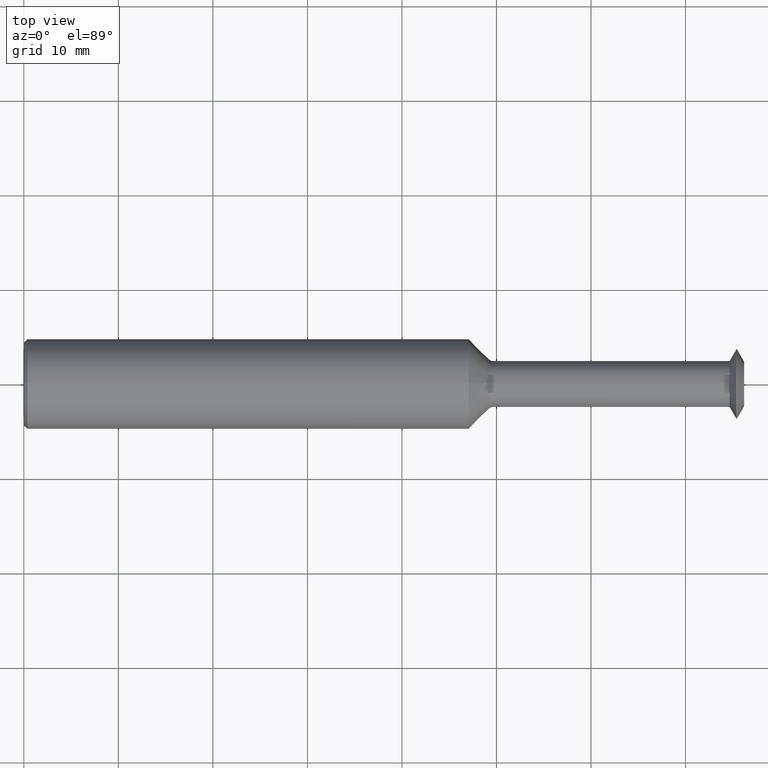
[diagram: clean part render]
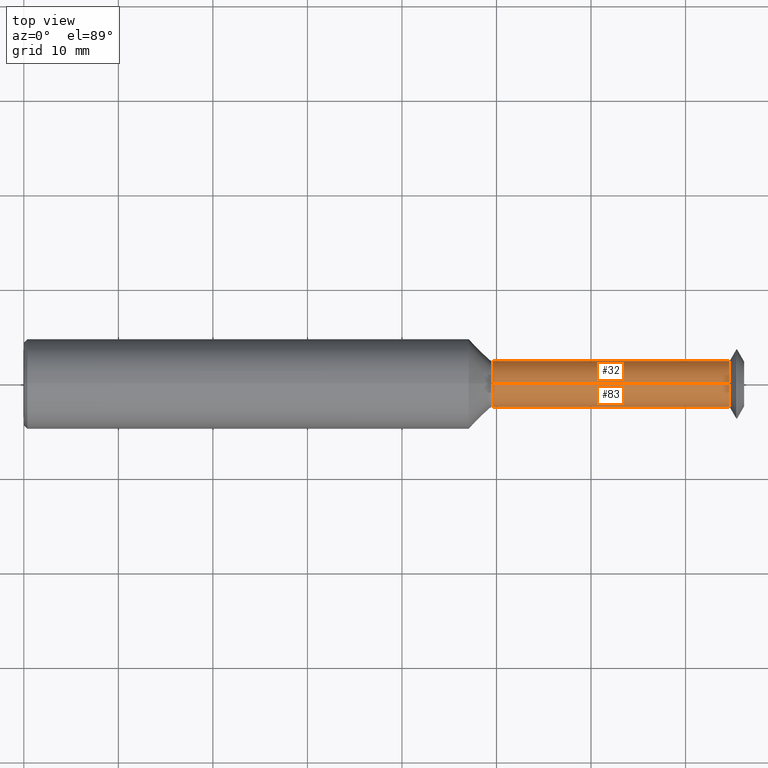
[diagram: same view with one multi-face feature highlighted, each face labeled with its STEP entity id]
A machine part, top view. The highlighted faces form ONE feature: a constant-radius fillet chain: 2 tangent blend faces with common blend radius 2.4384 mm. The faces share edges in the B-rep.
Their STEP definitions:
[1] entity #32 (Cylinder):
#26 = ORIENTED_EDGE ( 'NONE', *, *, #432, .T. ) ;
#27 = CARTESIAN_POINT ( 'NONE',  ( 1.954264365772504286, 0.0000000000000000000, 0.09599999999999997424 ) ) ;
#32 = ADVANCED_FACE ( 'NONE', ( #202 ), #470, .T. ) ;
#58 = VERTEX_POINT ( 'NONE', #492 ) ;
#60 = ORIENTED_EDGE ( 'NONE', *, *, #132, .T. ) ;
#86 = DIRECTION ( 'NONE',  ( -1.000000000000000000, -0.0000000000000000000, -0.0000000000000000000 ) ) ;
#129 = VECTOR ( 'NONE', #86, 39.37007874015748143 ) ;
#132 = EDGE_CURVE ( 'NONE', #443, #58, #303, .T. ) ;
#147 = AXIS2_PLACEMENT_3D ( 'NONE', #262, #244, #235 ) ;
#174 = CARTESIAN_POINT ( 'NONE',  ( 0.0000000000000000000, 1.175660927181458787E-17, -0.09599999999999997424 ) ) ;
#202 = FACE_OUTER_BOUND ( 'NONE', #500, .T. ) ;
#203 = CARTESIAN_POINT ( 'NONE',  ( 2.939539648039054764, 1.475699392972557039E-17, 0.09599999999999997424 ) ) ;
#207 = LINE ( 'NONE', #174, #335 ) ;
#217 = EDGE_CURVE ( 'NONE', #443, #236, #365, .T. ) ;
#235 = DIRECTION ( 'NONE',  ( 0.0000000000000000000, 0.0000000000000000000, 1.000000000000000000 ) ) ;
#236 = VERTEX_POINT ( 'NONE', #27 ) ;
#240 = DIRECTION ( 'NONE',  ( -1.000000000000000000, -0.0000000000000000000, -0.0000000000000000000 ) ) ;
#244 = DIRECTION ( 'NONE',  ( -1.000000000000000000, -0.0000000000000000000, -0.0000000000000000000 ) ) ;
#245 = DIRECTION ( 'NONE',  ( 0.0000000000000000000, 0.0000000000000000000, 1.000000000000000000 ) ) ;
#262 = CARTESIAN_POINT ( 'NONE',  ( 1.954264365772504286, 0.0000000000000000000, 0.0000000000000000000 ) ) ;
#284 = CARTESIAN_POINT ( 'NONE',  ( 0.0000000000000000000, 0.0000000000000000000, 0.0000000000000000000 ) ) ;
#300 = ORIENTED_EDGE ( 'NONE', *, *, #217, .F. ) ;
#303 = CIRCLE ( 'NONE', #354, 0.09599999999999997424 ) ;
#332 = DIRECTION ( 'NONE',  ( 0.0000000000000000000, 0.0000000000000000000, 1.000000000000000000 ) ) ;
#335 = VECTOR ( 'NONE', #240, 39.37007874015748143 ) ;
#354 = AXIS2_PLACEMENT_3D ( 'NONE', #376, #469, #332 ) ;
#363 = CARTESIAN_POINT ( 'NONE',  ( 1.954264365772504286, 1.175660927181458787E-17, -0.09599999999999997424 ) ) ;
#365 = LINE ( 'NONE', #471, #129 ) ;
#366 = VERTEX_POINT ( 'NONE', #363 ) ;
#376 = CARTESIAN_POINT ( 'NONE',  ( 2.939539648039054764, 0.0000000000000000000, 0.0000000000000000000 ) ) ;
#386 = ORIENTED_EDGE ( 'NONE', *, *, #412, .F. ) ;
#412 = EDGE_CURVE ( 'NONE', #236, #366, #454, .T. ) ;
#432 = EDGE_CURVE ( 'NONE', #58, #366, #207, .T. ) ;
#443 = VERTEX_POINT ( 'NONE', #203 ) ;
#454 = CIRCLE ( 'NONE', #147, 0.09599999999999997424 ) ;
#456 = DIRECTION ( 'NONE',  ( -1.000000000000000000, -0.0000000000000000000, -0.0000000000000000000 ) ) ;
#465 = AXIS2_PLACEMENT_3D ( 'NONE', #284, #456, #245 ) ;
#469 = DIRECTION ( 'NONE',  ( -1.000000000000000000, -0.0000000000000000000, -0.0000000000000000000 ) ) ;
#470 = CYLINDRICAL_SURFACE ( 'NONE', #465, 0.09599999999999997424 ) ;
#471 = CARTESIAN_POINT ( 'NONE',  ( 0.0000000000000000000, 0.0000000000000000000, 0.09599999999999997424 ) ) ;
#492 = CARTESIAN_POINT ( 'NONE',  ( 2.939539648039054764, 0.0000000000000000000, -0.09599999999999997424 ) ) ;
#500 = EDGE_LOOP ( 'NONE', ( #60, #26, #386, #300 ) ) ;
[2] entity #83 (Cylinder):
#21 = EDGE_CURVE ( 'NONE', #366, #236, #378, .T. ) ;
#27 = CARTESIAN_POINT ( 'NONE',  ( 1.954264365772504286, 0.0000000000000000000, 0.09599999999999997424 ) ) ;
#58 = VERTEX_POINT ( 'NONE', #492 ) ;
#67 = DIRECTION ( 'NONE',  ( -1.000000000000000000, -0.0000000000000000000, -0.0000000000000000000 ) ) ;
#74 = DIRECTION ( 'NONE',  ( 0.0000000000000000000, 0.0000000000000000000, 1.000000000000000000 ) ) ;
#83 = ADVANCED_FACE ( 'NONE', ( #487 ), #268, .T. ) ;
#86 = DIRECTION ( 'NONE',  ( -1.000000000000000000, -0.0000000000000000000, -0.0000000000000000000 ) ) ;
#99 = DIRECTION ( 'NONE',  ( -1.000000000000000000, -0.0000000000000000000, -0.0000000000000000000 ) ) ;
#102 = CARTESIAN_POINT ( 'NONE',  ( 2.939539648039054764, 0.0000000000000000000, 0.0000000000000000000 ) ) ;
#106 = AXIS2_PLACEMENT_3D ( 'NONE', #127, #67, #318 ) ;
#127 = CARTESIAN_POINT ( 'NONE',  ( 1.954264365772504286, 0.0000000000000000000, 0.0000000000000000000 ) ) ;
#129 = VECTOR ( 'NONE', #86, 39.37007874015748143 ) ;
#174 = CARTESIAN_POINT ( 'NONE',  ( 0.0000000000000000000, 1.175660927181458787E-17, -0.09599999999999997424 ) ) ;
#192 = ORIENTED_EDGE ( 'NONE', *, *, #432, .F. ) ;
#203 = CARTESIAN_POINT ( 'NONE',  ( 2.939539648039054764, 1.475699392972557039E-17, 0.09599999999999997424 ) ) ;
#207 = LINE ( 'NONE', #174, #335 ) ;
#217 = EDGE_CURVE ( 'NONE', #443, #236, #365, .T. ) ;
#218 = ORIENTED_EDGE ( 'NONE', *, *, #21, .F. ) ;
#236 = VERTEX_POINT ( 'NONE', #27 ) ;
#240 = DIRECTION ( 'NONE',  ( -1.000000000000000000, -0.0000000000000000000, -0.0000000000000000000 ) ) ;
#268 = CYLINDRICAL_SURFACE ( 'NONE', #427, 0.09599999999999997424 ) ;
#280 = DIRECTION ( 'NONE',  ( 0.0000000000000000000, 0.0000000000000000000, 1.000000000000000000 ) ) ;
#286 = AXIS2_PLACEMENT_3D ( 'NONE', #102, #99, #74 ) ;
#318 = DIRECTION ( 'NONE',  ( 0.0000000000000000000, 0.0000000000000000000, 1.000000000000000000 ) ) ;
#325 = CIRCLE ( 'NONE', #286, 0.09599999999999997424 ) ;
#335 = VECTOR ( 'NONE', #240, 39.37007874015748143 ) ;
#363 = CARTESIAN_POINT ( 'NONE',  ( 1.954264365772504286, 1.175660927181458787E-17, -0.09599999999999997424 ) ) ;
#365 = LINE ( 'NONE', #471, #129 ) ;
#366 = VERTEX_POINT ( 'NONE', #363 ) ;
#367 = EDGE_CURVE ( 'NONE', #58, #443, #325, .T. ) ;
#370 = DIRECTION ( 'NONE',  ( -1.000000000000000000, -0.0000000000000000000, -0.0000000000000000000 ) ) ;
#378 = CIRCLE ( 'NONE', #106, 0.09599999999999997424 ) ;
#407 = CARTESIAN_POINT ( 'NONE',  ( 0.0000000000000000000, 0.0000000000000000000, 0.0000000000000000000 ) ) ;
#421 = EDGE_LOOP ( 'NONE', ( #192, #490, #489, #218 ) ) ;
#427 = AXIS2_PLACEMENT_3D ( 'NONE', #407, #370, #280 ) ;
#432 = EDGE_CURVE ( 'NONE', #58, #366, #207, .T. ) ;
#443 = VERTEX_POINT ( 'NONE', #203 ) ;
#471 = CARTESIAN_POINT ( 'NONE',  ( 0.0000000000000000000, 0.0000000000000000000, 0.09599999999999997424 ) ) ;
#487 = FACE_OUTER_BOUND ( 'NONE', #421, .T. ) ;
#489 = ORIENTED_EDGE ( 'NONE', *, *, #217, .T. ) ;
#490 = ORIENTED_EDGE ( 'NONE', *, *, #367, .T. ) ;
#492 = CARTESIAN_POINT ( 'NONE',  ( 2.939539648039054764, 0.0000000000000000000, -0.09599999999999997424 ) ) ;